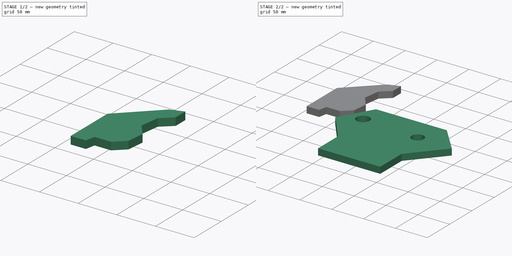
[diagram: build sequence overview — one tinted view per stage of 2, left to right]
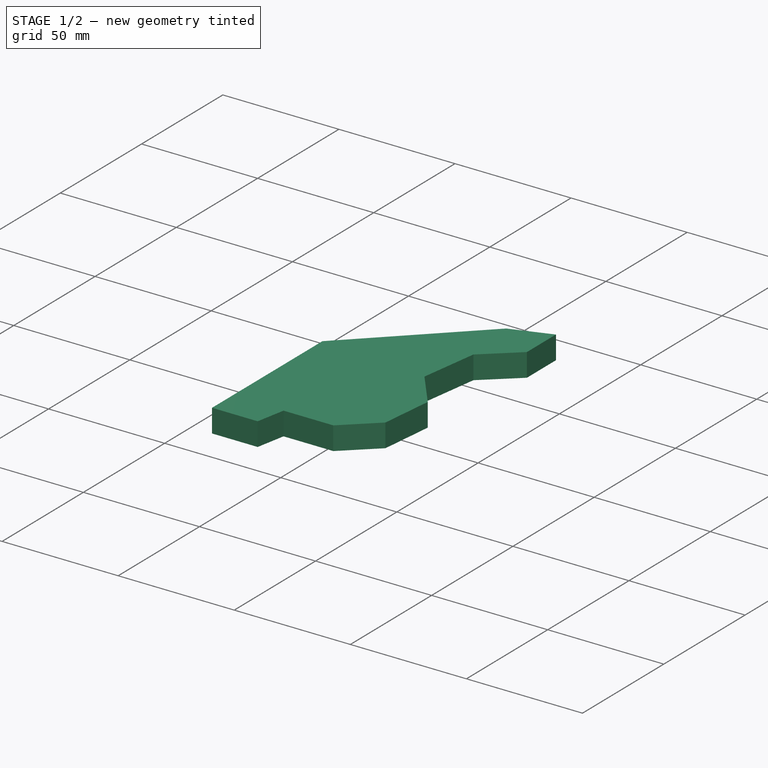
[diagram: stage 1 of 2 — iso view after this stage's code; geometry added in this stage tinted green]
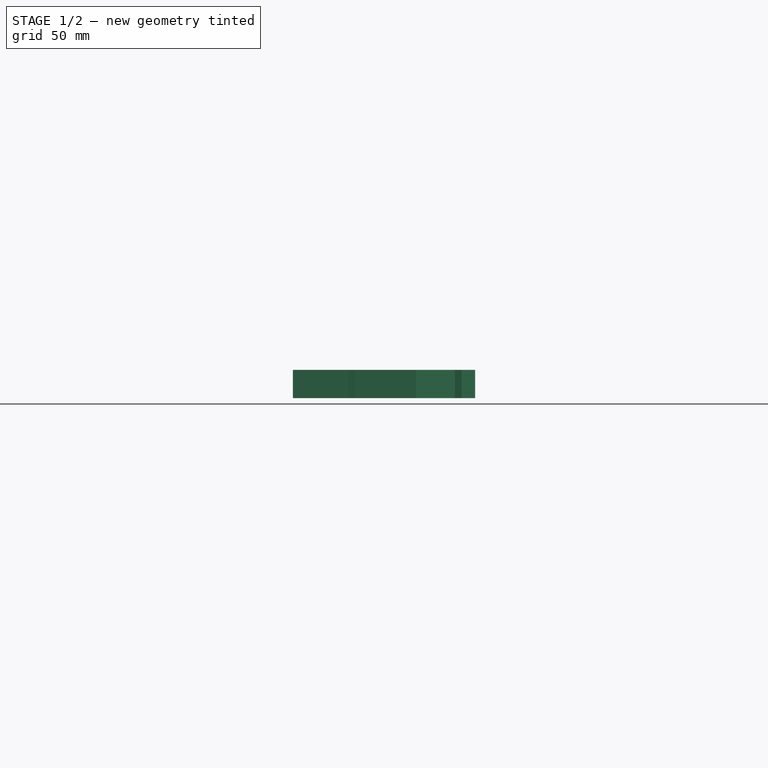
[diagram: stage 1 of 2 — front view after this stage's code; geometry added in this stage tinted green]
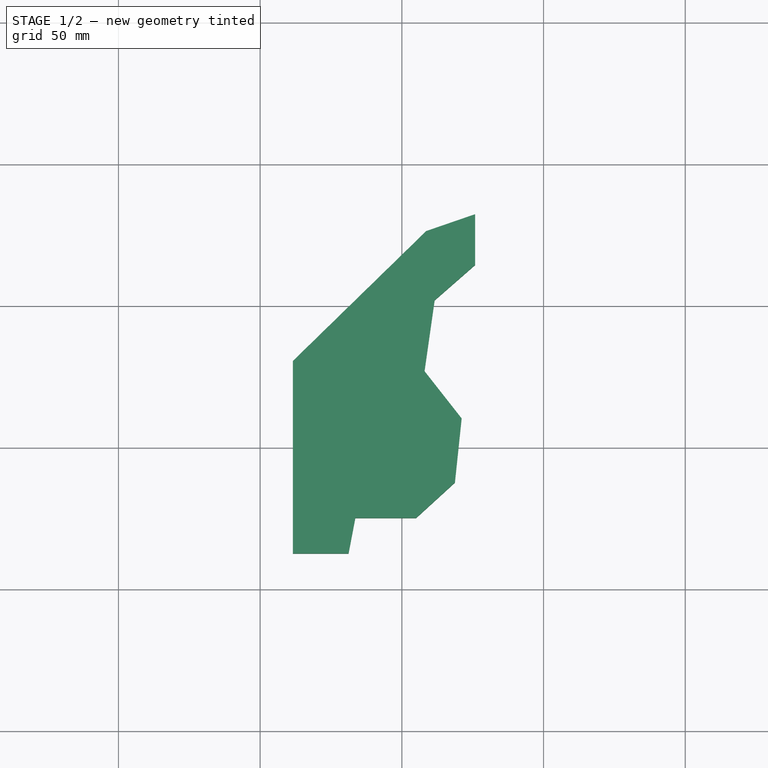
[diagram: stage 1 of 2 — top view after this stage's code; geometry added in this stage tinted green]
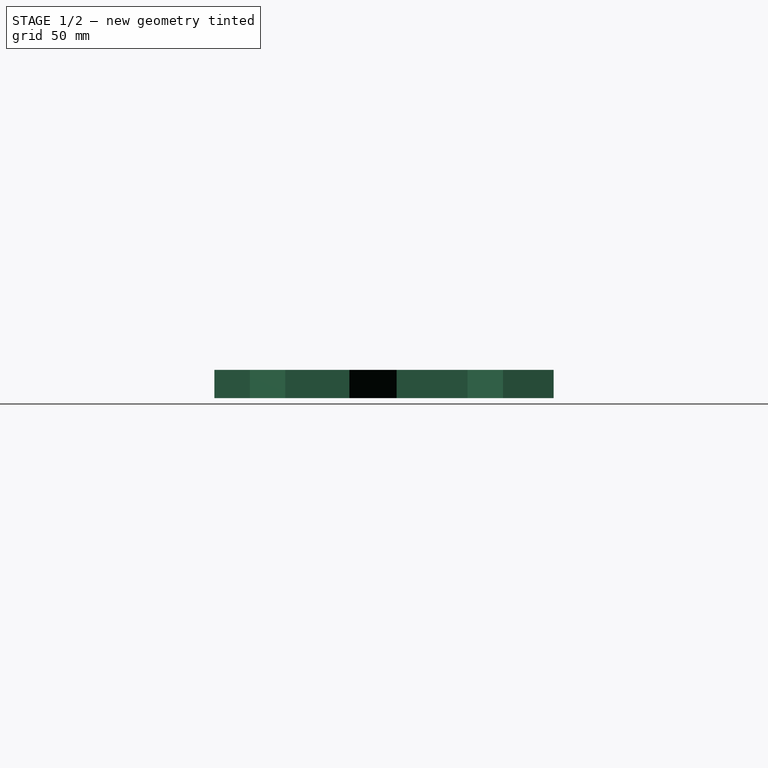
[diagram: stage 1 of 2 — right view after this stage's code; geometry added in this stage tinted green]
FCSTD DOCUMENT  (FreeCAD 1.0R39319 (Git))
Label: grip_system
License: All rights reserved
LicenseURL: https://en.wikipedia.org/wiki/All_rights_reserved
objects: Sketcher::SketchObject×4, PartDesign::Pad×3, PartDesign::Body×3, App::DocumentObjectGroup×3, PartDesign::Pocket×1, PartDesign::CoordinateSystem×1, App::FeaturePython×1, App::Part×1
note: 24 computed .brp shape members not serialized (recipe doc carries the construction recipe); baked Part::Feature solids carry a one-line shape summary decoded from their .brp

FEATURE [PartDesign::Body] Body  label="main part"
  AllowCompound = false
  Group = -> [Sketch,Pad,Sketch001,Pocket]
  Origin = -> Origin
  Tip = -> Pocket
FEATURE [Sketcher::SketchObject] Sketch002
  ArcFitTolerance = 1e-06
  AttachmentSupport = -> [XY_Plane001]
  FullyConstrained = false
  MakeInternals = false
  MapMode = 5
  sketch-geometry (12):
    g0: LineSegment StartX=-91.413 StartY=126.423 StartZ=0 EndX=-138.456 EndY=80.5716 EndZ=0
    g1: LineSegment StartX=-138.456 StartY=80.5716 StartZ=0 EndX=-138.456 EndY=12.6872 EndZ=0
    g2: LineSegment StartX=-138.456 StartY=12.6872 StartZ=0 EndX=-118.805 EndY=12.6872 EndZ=0
    g3: LineSegment StartX=-118.805 StartY=12.6872 StartZ=0 EndX=-116.423 EndY=25.1922 EndZ=0
    g4: LineSegment StartX=-116.423 StartY=25.1922 StartZ=0 EndX=-94.9858 EndY=25.1922 EndZ=0
    g5: LineSegment StartX=-94.9858 StartY=25.1922 StartZ=0 EndX=-81.2899 EndY=37.6972 EndZ=0
    g6: LineSegment StartX=-81.2899 StartY=37.6972 StartZ=0 EndX=-78.908 EndY=60.3253 EndZ=0
    g7: LineSegment StartX=-78.908 StartY=60.3253 StartZ=0 EndX=-92.0085 EndY=76.9987 EndZ=0
    g8: LineSegment StartX=-92.0085 StartY=76.9987 StartZ=0 EndX=-88.4356 EndY=102.009 EndZ=0
    g9: LineSegment StartX=-88.4356 StartY=102.009 StartZ=0 EndX=-74.1442 EndY=114.514 EndZ=0
    g10: LineSegment StartX=-74.1442 StartY=114.514 StartZ=0 EndX=-74.1442 EndY=132.378 EndZ=0
    g11: LineSegment StartX=-74.1442 StartY=132.378 StartZ=0 EndX=-91.413 EndY=126.423 EndZ=0
  constraints (16):
    c: Coincident(g0,g1)
    c: Vertical(g1)
    c: Coincident(g1,g2)
    c: Horizontal(g2)
    c: Coincident(g2,g3)
    c: Coincident(g3,g4)
    c: Horizontal(g4)
    c: Coincident(g4,g5)
    c: Coincident(g5,g6)
    c: Coincident(g6,g7)
    c: Coincident(g7,g8)
    c: Coincident(g8,g9)
    c: Coincident(g9,g10)
    c: Vertical(g10)
    c: Coincident(g10,g11)
    c: Coincident(g11,g0)
FEATURE [PartDesign::Pad] Pad001
  Direction = (0,0,1)
  Length = 10
  Length2 = 10
  Profile = -> Sketch002
  ReferenceAxis = -> Sketch002 [N_Axis]
  Refine = true
  Suppressed = false
  Type = 0
FEATURE [PartDesign::Body] Body001  label="left grip"
  AllowCompound = false
  Group = -> [Sketch002,Pad001]
  Origin = -> Origin001
  Tip = -> Pad001
FEATURE [Sketcher::SketchObject] Sketch003
  ArcFitTolerance = 1e-06
  AttachmentSupport = -> [XY_Plane002]
  FullyConstrained = false
  MakeInternals = false
  MapMode = 5
  sketch-geometry (12):
    g0: LineSegment StartX=-91.413 StartY=126.423 StartZ=0 EndX=-138.456 EndY=80.5716 EndZ=0
    g1: LineSegment StartX=-138.456 StartY=80.5716 StartZ=0 EndX=-138.456 EndY=12.6872 EndZ=0
    g2: LineSegment StartX=-138.456 StartY=12.6872 StartZ=0 EndX=-118.805 EndY=12.6872 EndZ=0
    g3: LineSegment StartX=-118.805 StartY=12.6872 StartZ=0 EndX=-116.423 EndY=25.1922 EndZ=0
    g4: LineSegment StartX=-116.423 StartY=25.1922 StartZ=0 EndX=-94.9858 EndY=25.1922 EndZ=0
    g5: LineSegment StartX=-94.9858 StartY=25.1922 StartZ=0 EndX=-81.2899 EndY=37.6972 EndZ=0
    g6: LineSegment StartX=-81.2899 StartY=37.6972 StartZ=0 EndX=-78.908 EndY=60.3253 EndZ=0
    g7: LineSegment StartX=-78.908 StartY=60.3253 StartZ=0 EndX=-92.0085 EndY=76.9987 EndZ=0
    g8: LineSegment StartX=-92.0085 StartY=76.9987 StartZ=0 EndX=-88.4356 EndY=102.009 EndZ=0
    g9: LineSegment StartX=-88.4356 StartY=102.009 StartZ=0 EndX=-74.1442 EndY=114.514 EndZ=0
    g10: LineSegment StartX=-74.1442 StartY=114.514 StartZ=0 EndX=-74.1442 EndY=132.378 EndZ=0
    g11: LineSegment StartX=-74.1442 StartY=132.378 StartZ=0 EndX=-91.413 EndY=126.423 EndZ=0
  constraints (16):
    c: Coincident(g0,g1)
    c: Vertical(g1)
    c: Coincident(g1,g2)
    c: Horizontal(g2)
    c: Coincident(g2,g3)
    c: Coincident(g3,g4)
    c: Horizontal(g4)
    c: Coincident(g4,g5)
    c: Coincident(g5,g6)
    c: Coincident(g6,g7)
    c: Coincident(g7,g8)
    c: Coincident(g8,g9)
    c: Coincident(g9,g10)
    c: Vertical(g10)
    c: Coincident(g10,g11)
    c: Coincident(g11,g0)
FEATURE [PartDesign::Pad] Pad002
  Direction = (0,0,1)
  Length = 10
  Length2 = 10
  Profile = -> Sketch003
  ReferenceAxis = -> Sketch003 [N_Axis]
  Refine = true
  Suppressed = false
  Type = 0
FEATURE [PartDesign::Body] Body002  label="right grip"
  AllowCompound = false
  Group = -> [Sketch003,Pad002]
  Origin = -> Origin002
  Placement = pos=(-1,0,11) rot=(0,1,0;3.14159rad)
  Tip = -> Pad002
FEATURE [App::DocumentObjectGroup] Parts
  Group = -> [Body,Body001,Body002]
FEATURE [PartDesign::CoordinateSystem] LCS_Origin
  AttacherType = Attacher::AttachEngine3D
  AttachmentSupport = -> [X_Axis003]
  MapMode = 2
FEATURE [App::DocumentObjectGroup] Constraints
FEATURE [App::FeaturePython] Variables  # WARN: FeaturePython — macro-defined, semantics opaque (R4)
  Type = App::PropertyContainer
FEATURE [App::DocumentObjectGroup] Configurations
FEATURE [App::Part] Assembly
  AssemblyType = Part::Link
  Group = -> [LCS_Origin,Constraints,Variables,Configurations]
  Origin = -> Origin003
  Type = Assembly
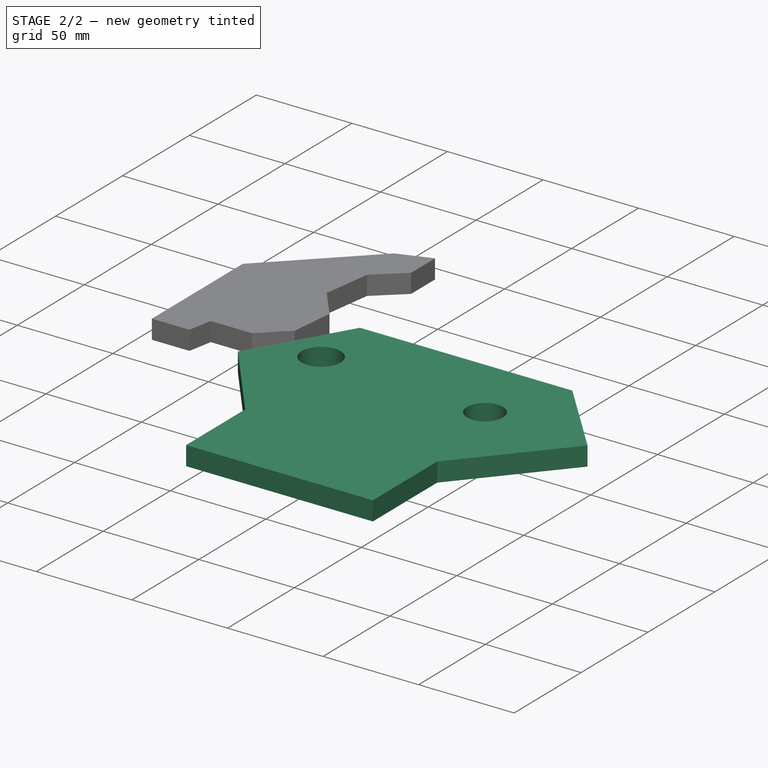
[diagram: stage 2 of 2 — iso view after this stage's code; geometry added in this stage tinted green]
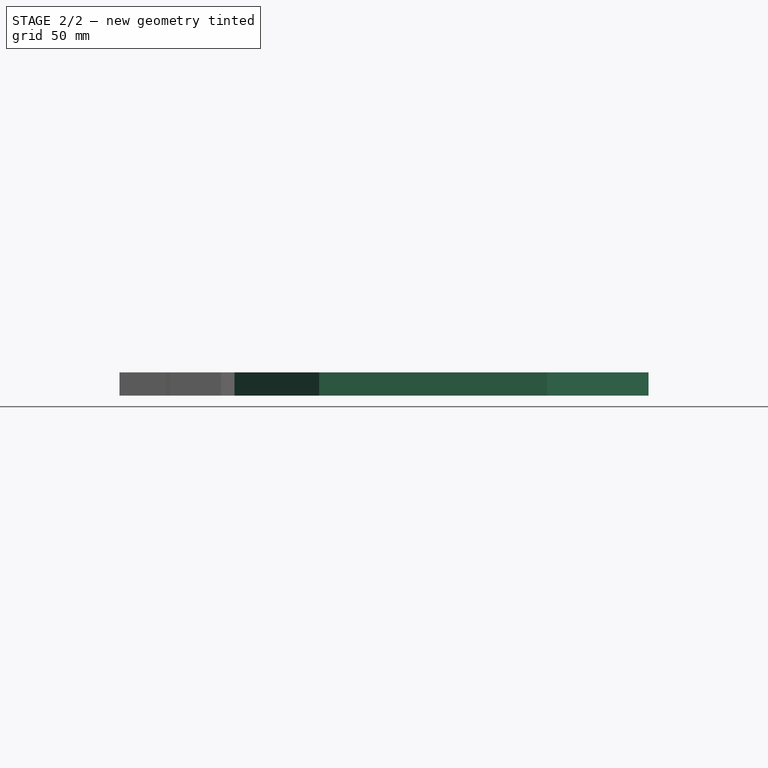
[diagram: stage 2 of 2 — front view after this stage's code; geometry added in this stage tinted green]
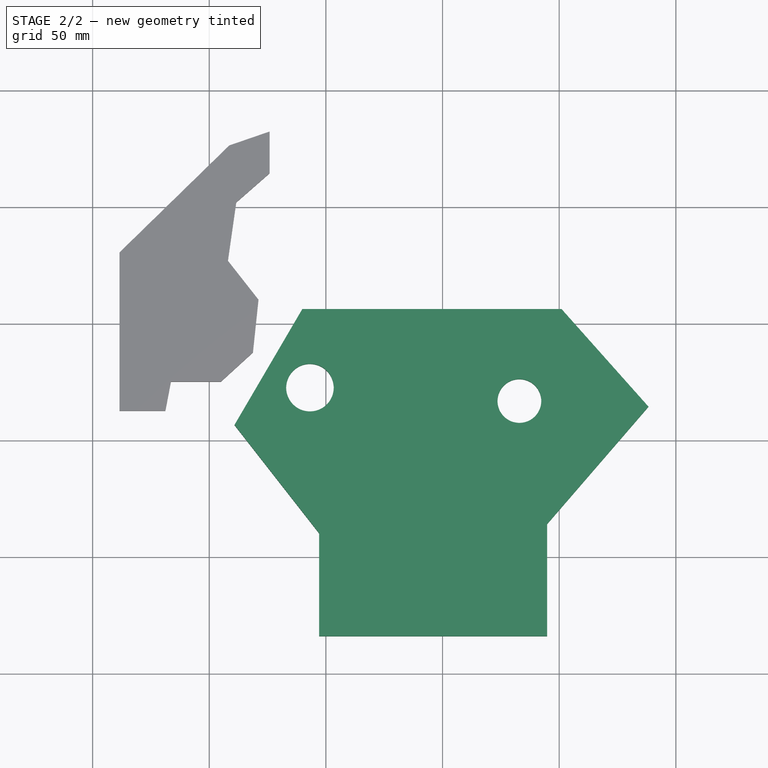
[diagram: stage 2 of 2 — top view after this stage's code; geometry added in this stage tinted green]
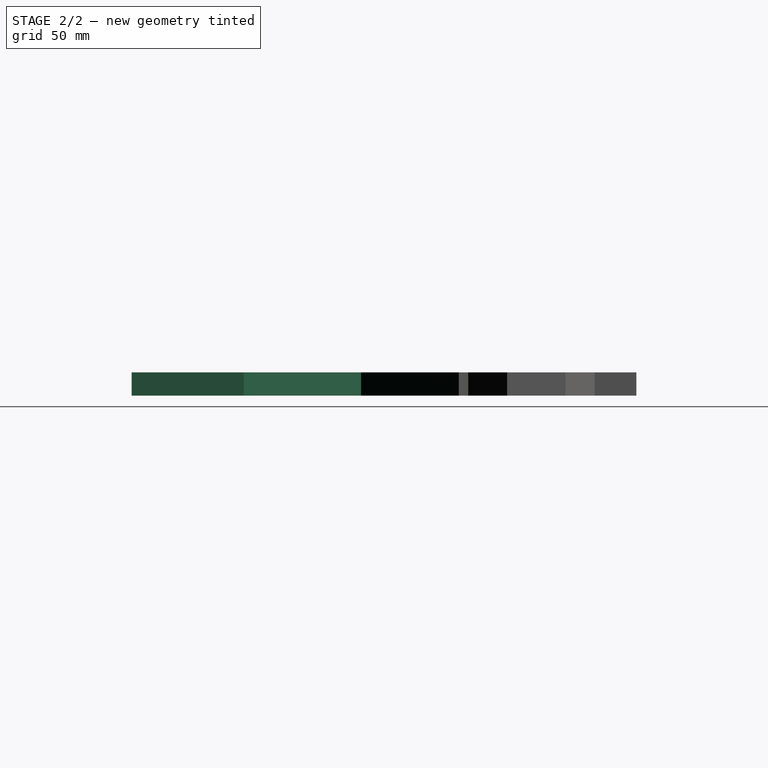
[diagram: stage 2 of 2 — right view after this stage's code; geometry added in this stage tinted green]
FEATURE [Sketcher::SketchObject] Sketch
  ArcFitTolerance = 1e-06
  AttachmentSupport = -> [XY_Plane]
  FullyConstrained = false
  MakeInternals = false
  MapMode = 5
  sketch-geometry (8):
    g0: LineSegment StartX=-60.1085 StartY=56.2832 StartZ=0 EndX=51.0052 EndY=56.2832 EndZ=0
    g1: LineSegment StartX=51.0052 StartY=56.2832 StartZ=0 EndX=88.2609 EndY=14.4522 EndZ=0
    g2: LineSegment StartX=88.2609 StartY=14.4522 StartZ=0 EndX=44.7959 EndY=-35.8757 EndZ=0
    g3: LineSegment StartX=44.7959 StartY=-35.8757 StartZ=0 EndX=44.7959 EndY=-83.916 EndZ=0
    g4: LineSegment StartX=44.7959 StartY=-83.916 StartZ=0 EndX=-52.9188 EndY=-83.916 EndZ=0
    g5: LineSegment StartX=-52.9188 StartY=-83.916 StartZ=0 EndX=-52.9188 EndY=-39.7974 EndZ=0
    g6: LineSegment StartX=-52.9188 StartY=-39.7974 StartZ=0 EndX=-89.1941 EndY=6.60889 EndZ=0
    g7: LineSegment StartX=-89.1941 StartY=6.60889 StartZ=0 EndX=-60.1085 EndY=56.2832 EndZ=0
  constraints (12):
    c: Horizontal(g0)
    c: Coincident(g0,g1)
    c: Coincident(g1,g2)
    c: Coincident(g2,g3)
    c: Vertical(g3)
    c: Coincident(g3,g4)
    c: Horizontal(g4)
    c: Coincident(g4,g5)
    c: Vertical(g5)
    c: Coincident(g5,g6)
    c: Coincident(g6,g7)
    c: Coincident(g7,g0)
FEATURE [PartDesign::Pad] Pad
  Direction = (0,0,1)
  Length = 10
  Length2 = 10
  Profile = -> Sketch
  ReferenceAxis = -> Sketch [N_Axis]
  Refine = true
  Suppressed = false
  Type = 0
FEATURE [Sketcher::SketchObject] Sketch001
  ArcFitTolerance = 1e-06
  AttachmentSupport = -> [Pad]
  FullyConstrained = false
  MakeInternals = false
  MapMode = 5
  Placement = pos=(0,0,10) rot=(0,0,1;0rad)
  sketch-geometry (2):
    g0: Circle CenterX=-56.8394 CenterY=22.5938 CenterZ=0 NormalX=0 NormalY=0 NormalZ=1 AngleXU=0 Radius=10.193
    g1: Circle CenterX=32.9341 CenterY=16.8729 CenterZ=0 NormalX=0 NormalY=0 NormalZ=1 AngleXU=0 Radius=9.38177
FEATURE [PartDesign::Pocket] Pocket
  BaseFeature = -> Pad
  Direction = (0,0,-1)
  Length = 12
  Length2 = 5
  Profile = -> Sketch001
  ReferenceAxis = -> Sketch001 [N_Axis]
  Refine = true
  Suppressed = false
  Type = 0
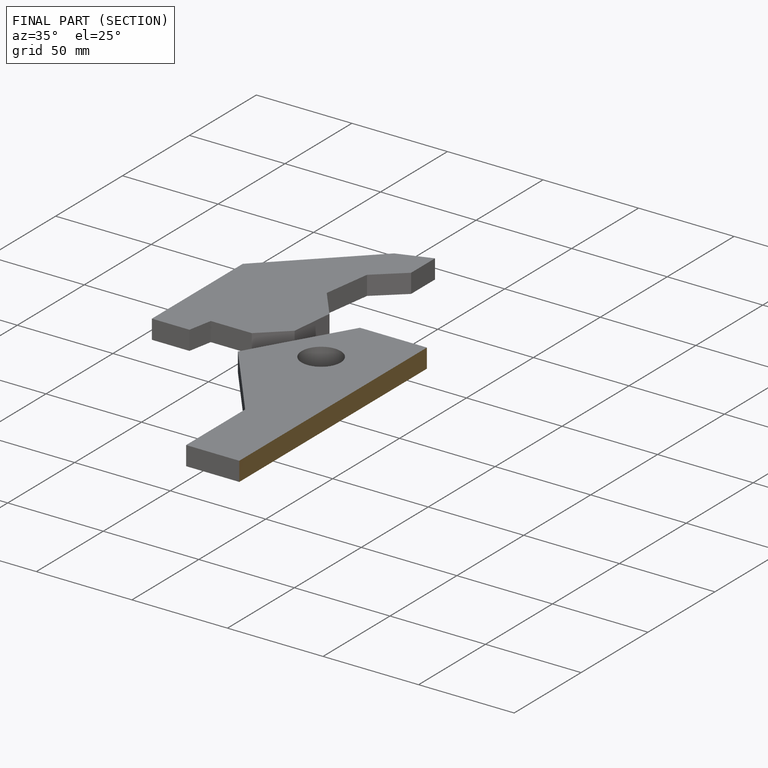
[diagram: finished part — half-section view (interior)]
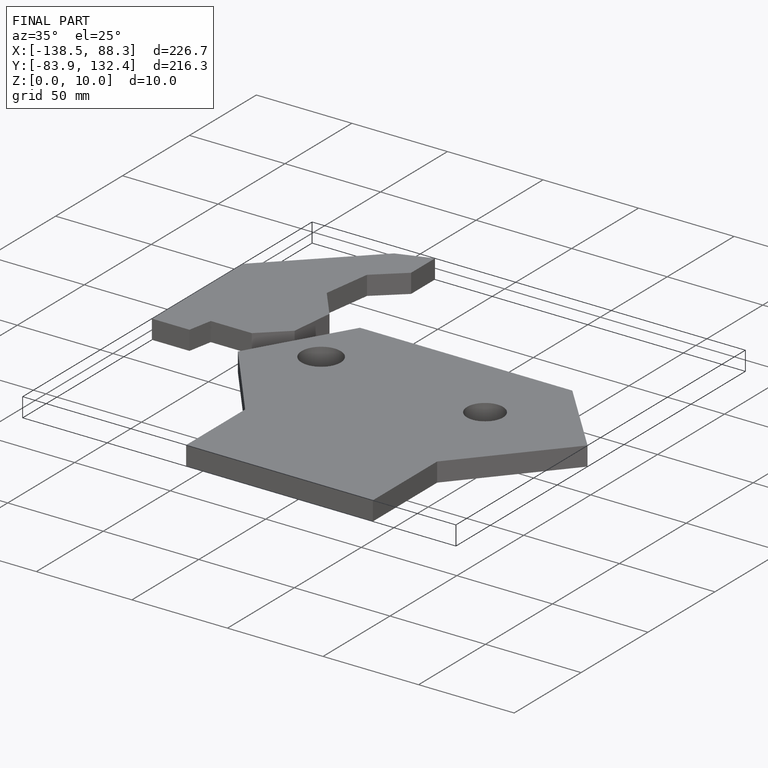
[diagram: finished part — iso view with bounding-box wireframe]
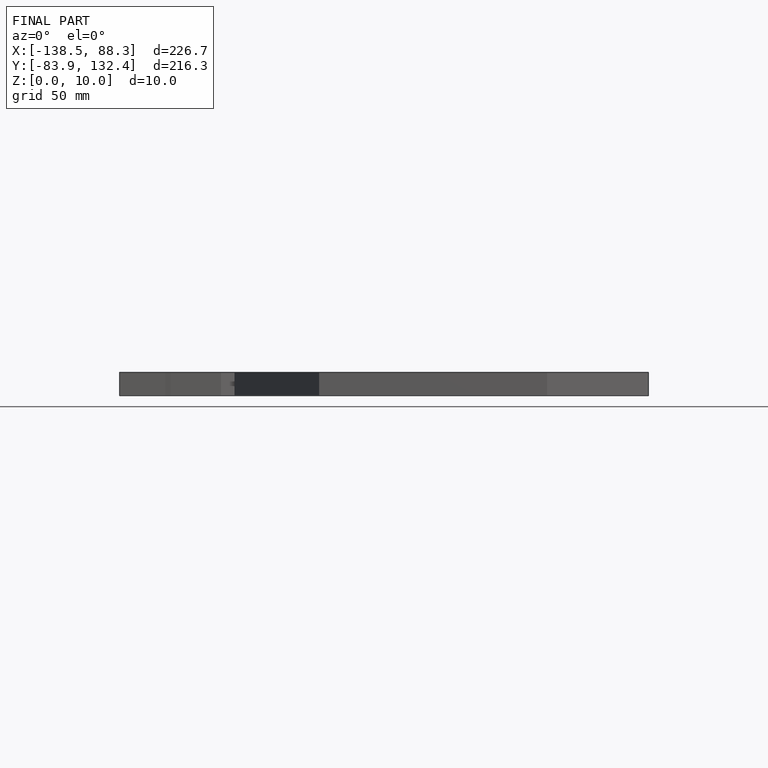
[diagram: finished part — front view with bounding-box wireframe]
